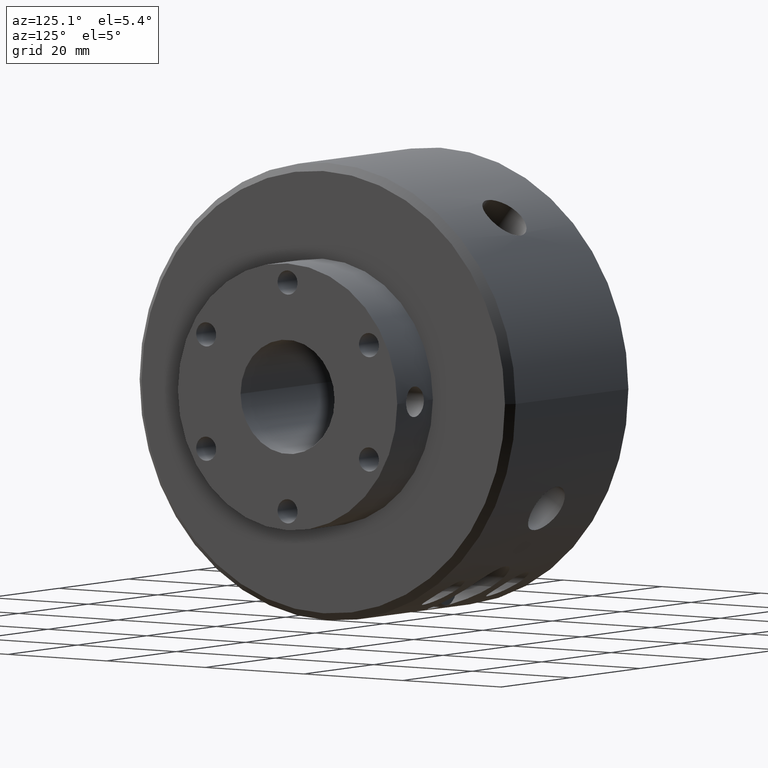
[diagram: clean part render]
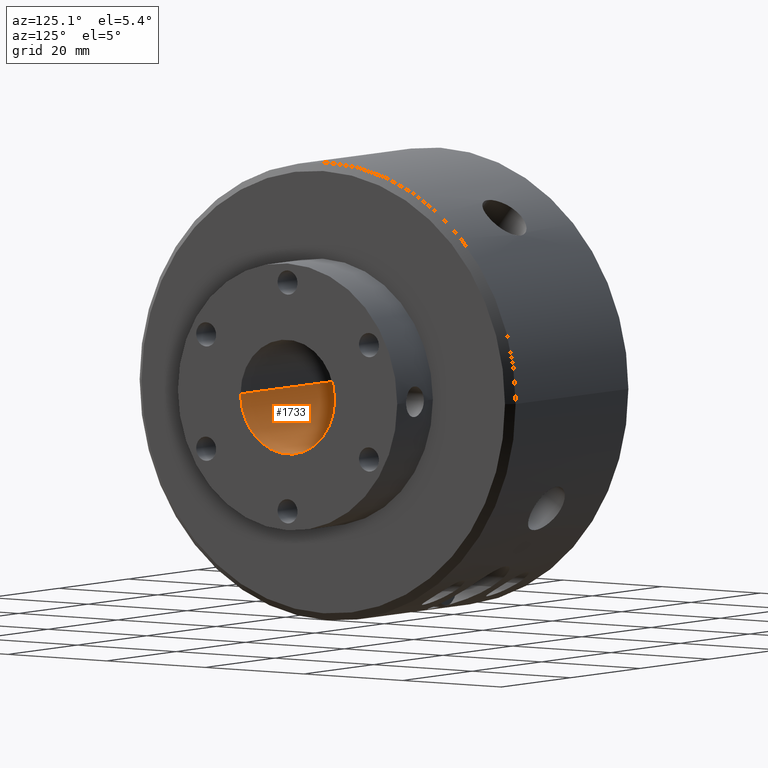
[diagram: same view with one face highlighted and labeled with its STEP entity id]
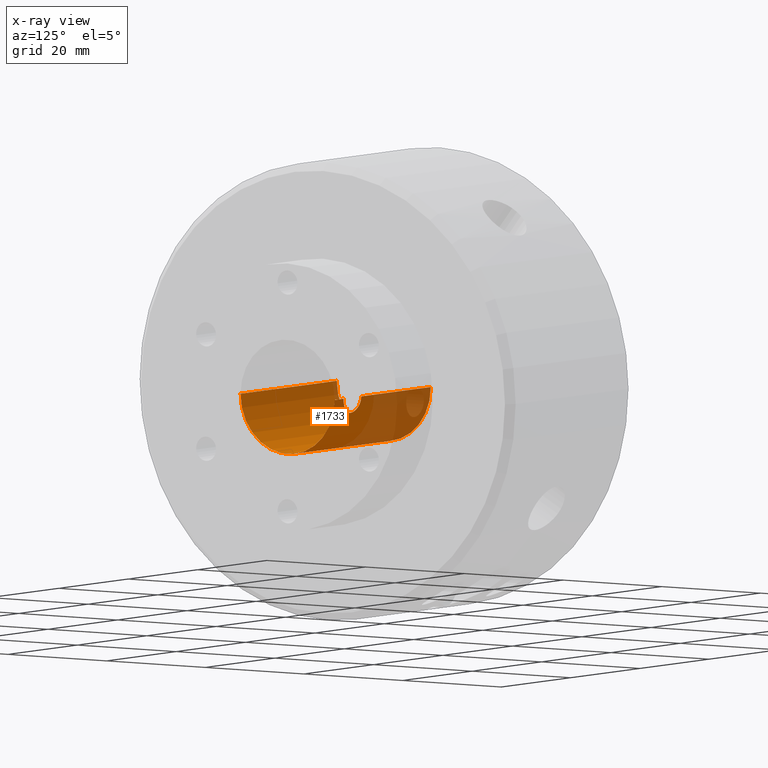
[diagram: x-ray of the same camera — body ghosted, the highlighted face saturated]
A machine part, auxiliary view. The second image highlights one B-rep face of the part: STEP entity #1733.
The next image is the same camera in x-ray: the body ghosted, the highlighted face saturated — about 30% of this face is hidden behind the body in this view.
In plain terms, the highlighted cylindrical surface (partial cylindrical patch) has radius 9.525 mm, axis along (1, 0, -0).
Its self-contained STEP definition (entity closure, byte-faithful):
#325 = B_SPLINE_CURVE_WITH_KNOTS ( 'NONE', 3,
 ( #692, #856, #448, #591, #851, #403, #717, #470, #520, #677, #511, #815, #659, #417, #716, #669 ),
 .UNSPECIFIED., .F., .F.,
 ( 4, 2, 2, 2, 2, 2, 2, 4 ),
 ( 0.008017703814297833300, 0.009019792762703192700, 0.009520837236905874100, 0.01002188171110855400, 0.01052292618531123400, 0.01102397065951391500, 0.01152501513371659600, 0.01202605960791927600 ),
 .UNSPECIFIED. ) ;
#326 = B_SPLINE_CURVE_WITH_KNOTS ( 'NONE', 3,
 ( #666, #543, #588, #572, #619, #592, #625, #630, #631, #522, #596, #404, #580, #468, #558, #465 ),
 .UNSPECIFIED., .F., .F.,
 ( 4, 2, 2, 2, 2, 2, 2, 4 ),
 ( 0.01202605960791927600, 0.01252695610930483500, 0.01302785261069039400, 0.01402964561346150900, 0.01453054211484707200, 0.01503143861623263400, 0.01553233511761819400, 0.01603323161900375600 ),
 .UNSPECIFIED. ) ;
#403 = CARTESIAN_POINT ( 'NONE',  ( 0.9723517661288307900, 0.3699843467086583700, -0.06137534763861877300 ) ) ;
#404 = CARTESIAN_POINT ( 'NONE',  ( 0.7972054746070890200, 0.3736306177769734300, -0.03259084714847985300 ) ) ;
#417 = CARTESIAN_POINT ( 'NONE',  ( 0.9057791064270952500, 0.3614689456650085900, -0.09983477039167257300 ) ) ;
#432 = CARTESIAN_POINT ( 'NONE',  ( 1.095000000000000000, 2.194690743086434000E-016, 0.0000000000000000000 ) ) ;
#448 = CARTESIAN_POINT ( 'NONE',  ( 0.9903434742291081800, 0.3742651086981095300, -0.02643541457693537500 ) ) ;
#465 = CARTESIAN_POINT ( 'NONE',  ( 0.7919999999999999300, 0.3750000000000001700, -1.419309602966549400E-017 ) ) ;
#468 = CARTESIAN_POINT ( 'NONE',  ( 0.7926576664995541600, 0.3748222012302437300, -0.01324022260937174200 ) ) ;
#470 = CARTESIAN_POINT ( 'NONE',  ( 0.9589447441954409600, 0.3673131936204386800, -0.07568558100550242000 ) ) ;
#511 = CARTESIAN_POINT ( 'NONE',  ( 0.9372003328165379200, 0.3639860298252591800, -0.09025556537848272700 ) ) ;
#520 = CARTESIAN_POINT ( 'NONE',  ( 0.9538100860046245800, 0.3664081666741441100, -0.07989939046377035600 ) ) ;
#522 = CARTESIAN_POINT ( 'NONE',  ( 0.8053314109728113600, 0.3716320784660460100, -0.05044943654531135200 ) ) ;
#536 = DIRECTION ( 'NONE',  ( 0.0000000000000000000, 1.000000000000000000, 0.0000000000000000000 ) ) ;
#543 = CARTESIAN_POINT ( 'NONE',  ( 0.8858743324587393700, 0.3612820920001434400, -0.1004999999999996900 ) ) ;
#558 = CARTESIAN_POINT ( 'NONE',  ( 0.7919999999999995900, 0.3750000000000001100, -0.006670339787273828500 ) ) ;
#559 = DIRECTION ( 'NONE',  ( 1.000000000000000000, 1.193989507720394800E-016, 0.0000000000000000000 ) ) ;
#572 = CARTESIAN_POINT ( 'NONE',  ( 0.8664138287397212800, 0.3621652064654154500, -0.09727867393609332400 ) ) ;
#580 = CARTESIAN_POINT ( 'NONE',  ( 0.7952461203323892800, 0.3741410270027507600, -0.02618163369917836400 ) ) ;
#588 = CARTESIAN_POINT ( 'NONE',  ( 0.8793327037193465800, 0.3614644189051793900, -0.09985114442229903200 ) ) ;
#591 = CARTESIAN_POINT ( 'NONE',  ( 0.9828001563440469400, 0.3723881540417953700, -0.04459947771566097300 ) ) ;
#592 = CARTESIAN_POINT ( 'NONE',  ( 0.8418330302688541400, 0.3646187554209096000, -0.08777888180886886400 ) ) ;
#596 = CARTESIAN_POINT ( 'NONE',  ( 0.8022456790590448700, 0.3723770057603661400, -0.04469191693363276000 ) ) ;
#619 = CARTESIAN_POINT ( 'NONE',  ( 0.8600014274635168200, 0.3626908373017551600, -0.09532627529400783400 ) ) ;
#625 = CARTESIAN_POINT ( 'NONE',  ( 0.8306852818725556400, 0.3664204632549529800, -0.08030621253319190900 ) ) ;
#630 = CARTESIAN_POINT ( 'NONE',  ( 0.8168545099983500800, 0.3690887790034932400, -0.06648672145293882400 ) ) ;
#631 = CARTESIAN_POINT ( 'NONE',  ( 0.8126499662453416900, 0.3699838735980564600, -0.06137980669658538900 ) ) ;
#659 = CARTESIAN_POINT ( 'NONE',  ( 0.9186490588379104800, 0.3621701772520472500, -0.09726018079641631000 ) ) ;
#666 = CARTESIAN_POINT ( 'NONE',  ( 0.8924999999999994000, 0.3612820920001435500, -0.1004999999999998700 ) ) ;
#669 = CARTESIAN_POINT ( 'NONE',  ( 0.8924999999999994000, 0.3612820920001435500, -0.1004999999999998700 ) ) ;
#677 = CARTESIAN_POINT ( 'NONE',  ( 0.9429621269326643500, 0.3647498378535365400, -0.08715740351690257100 ) ) ;
#692 = CARTESIAN_POINT ( 'NONE',  ( 0.9929999999999994400, 0.3750000000000002200, -2.146203551658962300E-022 ) ) ;
#700 = CARTESIAN_POINT ( 'NONE',  ( -1.095000000000000000, 0.3749999999999999400, 0.0000000000000000000 ) ) ;
#716 = CARTESIAN_POINT ( 'NONE',  ( 0.8991276248691476600, 0.3612820920001436100, -0.1004999999999997700 ) ) ;
#717 = CARTESIAN_POINT ( 'NONE',  ( 0.9682123129482062000, 0.3691021979187003600, -0.06641428213397215800 ) ) ;
#727 = CARTESIAN_POINT ( 'NONE',  ( 0.002500000000000000100, -4.201462788212306000E-017, 0.0000000000000000000 ) ) ;
#737 = CARTESIAN_POINT ( 'NONE',  ( -1.095000000000000000, -0.3750000000000001100, 4.592425496802575500E-017 ) ) ;
#739 = DIRECTION ( 'NONE',  ( 1.000000000000000000, 1.193989507720394800E-016, -0.0000000000000000000 ) ) ;
#743 = DIRECTION ( 'NONE',  ( 1.000000000000000000, 0.0000000000000000000, 0.0000000000000000000 ) ) ;
#745 = DIRECTION ( 'NONE',  ( 1.000000000000000000, 1.193989507720394800E-016, -0.0000000000000000000 ) ) ;
#754 = CARTESIAN_POINT ( 'NONE',  ( -1.095000000000000000, 0.3749999999999999400, 0.0000000000000000000 ) ) ;
#757 = DIRECTION ( 'NONE',  ( 1.000000000000000000, 1.193989507720394800E-016, -0.0000000000000000000 ) ) ;
#759 = DIRECTION ( 'NONE',  ( 0.0000000000000000000, 0.0000000000000000000, -1.000000000000000000 ) ) ;
#815 = CARTESIAN_POINT ( 'NONE',  ( 0.9249590556391130700, 0.3626862286426494900, -0.09534461989391844500 ) ) ;
#851 = CARTESIAN_POINT ( 'NONE',  ( 0.9796491143838096400, 0.3716276098373497700, -0.05048038939798707400 ) ) ;
#856 = CARTESIAN_POINT ( 'NONE',  ( 0.9929999999999996600, 0.3750000000000002200, -0.01315364348879509300 ) ) ;
#1100 = CARTESIAN_POINT ( 'NONE',  ( 0.7919999999999999300, 0.3750000000000001700, -1.419309602966549400E-017 ) ) ;
#1103 = CARTESIAN_POINT ( 'NONE',  ( 0.8924999999999994000, 0.3612820920001435500, -0.1004999999999998700 ) ) ;
#1139 = CARTESIAN_POINT ( 'NONE',  ( 0.002500000000000000100, -0.3750000000000000600, 4.592425496802577300E-017 ) ) ;
#1140 = CARTESIAN_POINT ( 'NONE',  ( 0.002500000000000000100, 0.3749999999999999400, 0.0000000000000000000 ) ) ;
#1142 = CARTESIAN_POINT ( 'NONE',  ( 1.095000000000000000, -0.3749999999999998300, 4.592425496802575500E-017 ) ) ;
#1143 = CARTESIAN_POINT ( 'NONE',  ( 1.095000000000000000, 0.3750000000000002200, 0.0000000000000000000 ) ) ;
#1144 = CARTESIAN_POINT ( 'NONE',  ( 0.9929999999999994400, 0.3750000000000002200, -2.146203551658962300E-022 ) ) ;
#1238 = VERTEX_POINT ( 'NONE', #1144 ) ;
#1239 = VERTEX_POINT ( 'NONE', #1143 ) ;
#1241 = VERTEX_POINT ( 'NONE', #1142 ) ;
#1242 = VERTEX_POINT ( 'NONE', #1140 ) ;
#1243 = VERTEX_POINT ( 'NONE', #1139 ) ;
#1279 = VERTEX_POINT ( 'NONE', #1103 ) ;
#1280 = VERTEX_POINT ( 'NONE', #1100 ) ;
#1733 = ADVANCED_FACE ( 'NONE', ( #2598 ), #2607, .F. ) ;
#1826 = EDGE_CURVE ( 'NONE', #1279, #1280, #326, .T. ) ;
#1845 = EDGE_CURVE ( 'NONE', #1241, #1239, #3048, .T. ) ;
#1849 = EDGE_CURVE ( 'NONE', #1238, #1279, #325, .T. ) ;
#1854 = EDGE_CURVE ( 'NONE', #1243, #1241, #3059, .T. ) ;
#1855 = EDGE_CURVE ( 'NONE', #1243, #1242, #3063, .T. ) ;
#1856 = EDGE_CURVE ( 'NONE', #1238, #1239, #3062, .T. ) ;
#1857 = EDGE_CURVE ( 'NONE', #1242, #1280, #3064, .T. ) ;
#2598 = FACE_OUTER_BOUND ( 'NONE', #4841, .T. ) ;
#2607 = CYLINDRICAL_SURFACE ( 'NONE', #2792, 0.3750000000000000600 ) ;
#2792 = AXIS2_PLACEMENT_3D ( 'NONE', #4426, #4427, #4431 ) ;
#2841 = AXIS2_PLACEMENT_3D ( 'NONE', #432, #559, #536 ) ;
#2847 = AXIS2_PLACEMENT_3D ( 'NONE', #727, #743, #759 ) ;
#3048 = CIRCLE ( 'NONE', #2841, 0.3750000000000000600 ) ;
#3054 = VECTOR ( 'NONE', #757, 39.37007874015748100 ) ;
#3059 = LINE ( 'NONE', #737, #3060 ) ;
#3060 = VECTOR ( 'NONE', #739, 39.37007874015748100 ) ;
#3062 = LINE ( 'NONE', #700, #3054 ) ;
#3063 = CIRCLE ( 'NONE', #2847, 0.3750000000000000600 ) ;
#3064 = LINE ( 'NONE', #754, #3065 ) ;
#3065 = VECTOR ( 'NONE', #745, 39.37007874015748100 ) ;
#4426 = CARTESIAN_POINT ( 'NONE',  ( -1.095000000000000000, -4.201462788212306000E-017, 0.0000000000000000000 ) ) ;
#4427 = DIRECTION ( 'NONE',  ( 1.000000000000000000, 1.193989507720394800E-016, -0.0000000000000000000 ) ) ;
#4431 = DIRECTION ( 'NONE',  ( 0.0000000000000000000, 1.000000000000000000, 0.0000000000000000000 ) ) ;
#4841 = EDGE_LOOP ( 'NONE', ( #4879, #4878, #4877, #4876, #4875, #4874, #4873 ) ) ;
#4873 = ORIENTED_EDGE ( 'NONE', *, *, #1857, .F. ) ;
#4874 = ORIENTED_EDGE ( 'NONE', *, *, #1826, .T. ) ;
#4875 = ORIENTED_EDGE ( 'NONE', *, *, #1849, .T. ) ;
#4876 = ORIENTED_EDGE ( 'NONE', *, *, #1856, .F. ) ;
#4877 = ORIENTED_EDGE ( 'NONE', *, *, #1845, .T. ) ;
#4878 = ORIENTED_EDGE ( 'NONE', *, *, #1854, .T. ) ;
#4879 = ORIENTED_EDGE ( 'NONE', *, *, #1855, .F. ) ;